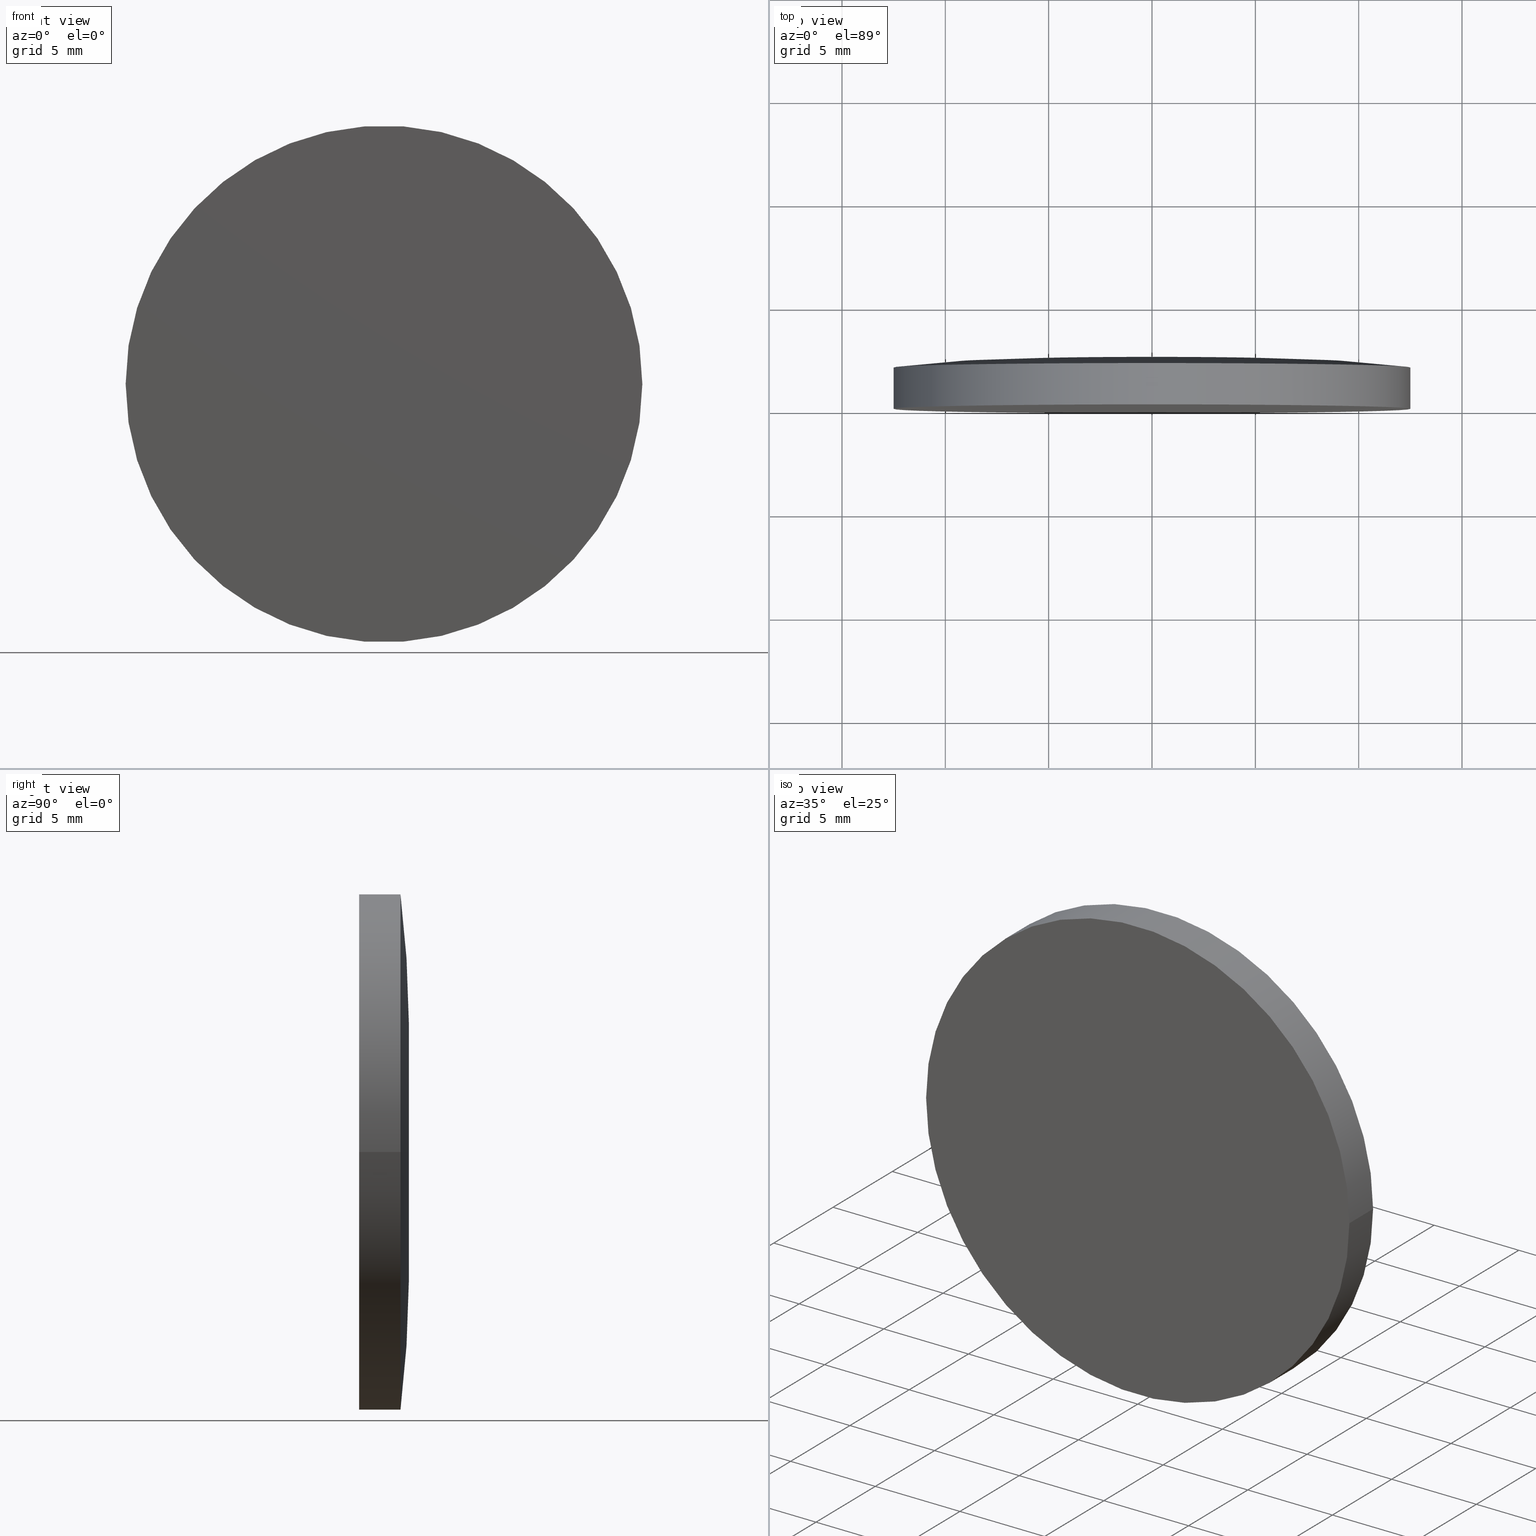
[diagram: canonical four-view strip — front | top / right | iso, engineering-drawing reading convention]
A machine part, canonical four-view strip (front | top / right | iso — engineering-drawing reading convention). The complete STEP part file that produces these views, byte-faithful:
ISO-10303-21;
HEADER;
FILE_DESCRIPTION (( 'STEP AP203' ),
    '1' );
FILE_NAME ('100568.STEP',
    '2024-05-09T07:18:32',
    ( '' ),
    ( '' ),
    'SwSTEP 2.0',
    'SolidWorks 2020',
    '' );
FILE_SCHEMA (( 'CONFIG_CONTROL_DESIGN' ));
ENDSEC;

DATA;
#1 = DATE_AND_TIME ( #106, #96 ) ;
#2 = ORIENTED_EDGE ( 'NONE', *, *, #57, .T. ) ;
#3 = DIRECTION ( 'NONE',  ( -1.000000000000000000, 0.000000000000000000, 0.000000000000000000 ) ) ;
#4 = DIRECTION ( 'NONE',  ( -1.000000000000000000, -1.169672205489146743E-19, 0.000000000000000000 ) ) ;
#5 = VERTEX_POINT ( 'NONE', #125 ) ;
#6 = CARTESIAN_POINT ( 'NONE',  ( -2.339344410978232820E-19, 1.999999999999998224, 0.000000000000000000 ) ) ;
#7 =( LENGTH_UNIT ( ) NAMED_UNIT ( * ) SI_UNIT ( .MILLI., .METRE. ) );
#8 = PERSON_AND_ORGANIZATION ( #164, #42 ) ;
#9 = DIRECTION ( 'NONE',  ( -1.169672205489117373E-19, 1.000000000000000000, -0.000000000000000000 ) ) ;
#10 = EDGE_CURVE ( 'NONE', #5, #76, #26, .T. ) ;
#11 = CLOSED_SHELL ( 'NONE', ( #44, #81, #201, #104, #134 ) ) ;
#12 = COORDINATED_UNIVERSAL_TIME_OFFSET ( 8, 0, .AHEAD. ) ;
#13 = PERSON_AND_ORGANIZATION ( #164, #42 ) ;
#14 = FACE_OUTER_BOUND ( 'NONE', #138, .T. ) ;
#15 = PERSON_AND_ORGANIZATION ( #164, #42 ) ;
#16 = ORIENTED_EDGE ( 'NONE', *, *, #29, .F. ) ;
#17 = AXIS2_PLACEMENT_3D ( 'NONE', #199, #9, #117 ) ;
#18 = CARTESIAN_POINT ( 'NONE',  ( 1.880790961315660013E-34, -1.734723475976807094E-15, 0.000000000000000000 ) ) ;
#19 = CIRCLE ( 'NONE', #36, 12.50000000000000000 ) ;
#20 = PRODUCT_DEFINITION_FORMATION_WITH_SPECIFIED_SOURCE ( '�κ�', '', #111, .NOT_KNOWN. ) ;
#21 = AXIS2_PLACEMENT_3D ( 'NONE', #188, #110, #172 ) ;
#22 = DIRECTION ( 'NONE',  ( 0.000000000000000000, 0.000000000000000000, 1.000000000000000000 ) ) ;
#23 = EDGE_CURVE ( 'NONE', #173, #5, #58, .T. ) ;
#24 =( NAMED_UNIT ( * ) PLANE_ANGLE_UNIT ( ) SI_UNIT ( $, .RADIAN. ) );
#25 = COORDINATED_UNIVERSAL_TIME_OFFSET ( 8, 0, .AHEAD. ) ;
#26 = CIRCLE ( 'NONE', #52, 54.71175825615954125 ) ;
#27 = DIRECTION ( 'NONE',  ( -1.000000000000000000, -1.169672205489146743E-19, 0.000000000000000000 ) ) ;
#28 = DATE_AND_TIME ( #167, #178 ) ;
#29 = EDGE_CURVE ( 'NONE', #182, #40, #109, .T. ) ;
#30 = FACE_OUTER_BOUND ( 'NONE', #59, .T. ) ;
#31 = CARTESIAN_POINT ( 'NONE',  ( 0.000000000000000000, -52.30504434439075112, 0.000000000000000000 ) ) ;
#32 = CYLINDRICAL_SURFACE ( 'NONE', #168, 12.50000000000000000 ) ;
#33 = CC_DESIGN_APPROVAL ( #197, ( #187 ) ) ;
#34 = PRODUCT_RELATED_PRODUCT_CATEGORY ( 'detail', '', ( #111 ) ) ;
#35 = APPLICATION_PROTOCOL_DEFINITION ( 'international standard', 'config_control_design', 1994, #62 ) ;
#36 = AXIS2_PLACEMENT_3D ( 'NONE', #18, #43, #27 ) ;
#37 = DATE_TIME_ROLE ( 'creation_date' ) ;
#38 = DIRECTION ( 'NONE',  ( -1.000000000000000000, 0.000000000000000000, 0.000000000000000000 ) ) ;
#39 = CARTESIAN_POINT ( 'NONE',  ( -2.449293598294211805E-19, 2.093999999999999861, 0.000000000000000000 ) ) ;
#40 = VERTEX_POINT ( 'NONE', #77 ) ;
#41 = DATE_TIME_ROLE ( 'classification_date' ) ;
#42 = ORGANIZATION ( 'δָ��', 'δָ��', '' ) ;
#43 = DIRECTION ( 'NONE',  ( -1.169672205489117373E-19, 1.000000000000000000, -0.000000000000000000 ) ) ;
#44 = ADVANCED_FACE ( 'NONE', ( #30 ), #32, .T. ) ;
#45 = ORIENTED_EDGE ( 'NONE', *, *, #120, .T. ) ;
#46 = AXIS2_PLACEMENT_3D ( 'NONE', #39, #84, #38 ) ;
#47 = CARTESIAN_POINT ( 'NONE',  ( -5.841272626530174428, -52.30504434439075112, 0.000000000000000000 ) ) ;
#48 = APPROVAL ( #198, 'δָ��' ) ;
#49 = AXIS2_PLACEMENT_3D ( 'NONE', #6, #85, #100 ) ;
#50 = PERSON_AND_ORGANIZATION ( #164, #42 ) ;
#51 = PERSON_AND_ORGANIZATION_ROLE ( 'creator' ) ;
#52 = AXIS2_PLACEMENT_3D ( 'NONE', #47, #115, #3 ) ;
#53 = FACE_OUTER_BOUND ( 'NONE', #165, .T. ) ;
#54 = CARTESIAN_POINT ( 'NONE',  ( -2.339344410978232820E-19, 1.999999999999998224, 0.000000000000000000 ) ) ;
#55 = CALENDAR_DATE ( 2024, 9, 5 ) ;
#56 = APPROVAL_PERSON_ORGANIZATION ( #99, #197, #162 ) ;
#57 = EDGE_CURVE ( 'NONE', #173, #182, #128, .T. ) ;
#58 = LINE ( 'NONE', #189, #113 ) ;
#59 = EDGE_LOOP ( 'NONE', ( #2, #71, #70, #91 ) ) ;
#60 = LOCAL_TIME ( 15, 18, 32.00000000000000000, #25 ) ;
#61 = ORIENTED_EDGE ( 'NONE', *, *, #97, .T. ) ;
#62 = APPLICATION_CONTEXT ( 'configuration controlled 3d designs of mechanical parts and assemblies' ) ;
#63 = APPLICATION_PROTOCOL_DEFINITION ( 'international standard', 'config_control_design', 1994, #150 ) ;
#64 = PERSON_AND_ORGANIZATION ( #164, #42 ) ;
#65 = CC_DESIGN_PERSON_AND_ORGANIZATION_ASSIGNMENT ( #124, #90, ( #185 ) ) ;
#66 = CARTESIAN_POINT ( 'NONE',  ( 12.50000000000000000, -1.733261385719945655E-15, 1.530808498934191521E-15 ) ) ;
#67 = COORDINATED_UNIVERSAL_TIME_OFFSET ( 8, 0, .AHEAD. ) ;
#68 = SHAPE_DEFINITION_REPRESENTATION ( #190, #82 ) ;
#69 = CIRCLE ( 'NONE', #136, 12.50000000000000000 ) ;
#70 = ORIENTED_EDGE ( 'NONE', *, *, #120, .F. ) ;
#71 = ORIENTED_EDGE ( 'NONE', *, *, #29, .T. ) ;
#72 = SECURITY_CLASSIFICATION_LEVEL ( 'unclassified' ) ;
#73 = ORIENTED_EDGE ( 'NONE', *, *, #183, .F. ) ;
#74 = APPROVAL_STATUS ( 'not_yet_approved' ) ;
#75 = CC_DESIGN_PERSON_AND_ORGANIZATION_ASSIGNMENT ( #64, #51, ( #187 ) ) ;
#76 = VERTEX_POINT ( 'NONE', #127 ) ;
#77 = CARTESIAN_POINT ( 'NONE',  ( 12.50000000000000355, 1.999999999999996669, 1.530808498934191916E-15 ) ) ;
#78 = ORIENTED_EDGE ( 'NONE', *, *, #97, .F. ) ;
#79 = AXIS2_PLACEMENT_3D ( 'NONE', #89, #92, #4 ) ;
#80 = LOCAL_TIME ( 15, 18, 32.00000000000000000, #67 ) ;
#81 = ADVANCED_FACE ( 'NONE', ( #14 ), #98, .T. ) ;
#82 = ADVANCED_BREP_SHAPE_REPRESENTATION ( '100568', ( #192, #169 ), #140 ) ;
#83 = MECHANICAL_CONTEXT ( 'NONE', #150, 'mechanical' ) ;
#84 = DIRECTION ( 'NONE',  ( -1.169672205489117373E-19, 1.000000000000000000, -0.000000000000000000 ) ) ;
#85 = DIRECTION ( 'NONE',  ( -1.169672205489117373E-19, 1.000000000000000000, -0.000000000000000000 ) ) ;
#86 = CYLINDRICAL_SURFACE ( 'NONE', #46, 12.50000000000000000 ) ;
#87 = PERSON_AND_ORGANIZATION_ROLE ( 'design_supplier' ) ;
#88 = APPROVAL_DATE_TIME ( #166, #116 ) ;
#89 = CARTESIAN_POINT ( 'NONE',  ( 1.880790961315660013E-34, -1.734723475976807094E-15, 0.000000000000000000 ) ) ;
#90 = PERSON_AND_ORGANIZATION_ROLE ( 'classification_officer' ) ;
#91 = ORIENTED_EDGE ( 'NONE', *, *, #23, .F. ) ;
#92 = DIRECTION ( 'NONE',  ( -1.169672205489117373E-19, 1.000000000000000000, -0.000000000000000000 ) ) ;
#93 = DIRECTION ( 'NONE',  ( -1.169672205489117373E-19, 1.000000000000000000, -0.000000000000000000 ) ) ;
#94 = DESIGN_CONTEXT ( 'detailed design', #62, 'design' ) ;
#95 = DIRECTION ( 'NONE',  ( -1.169672205489117373E-19, 1.000000000000000000, -0.000000000000000000 ) ) ;
#96 = LOCAL_TIME ( 15, 18, 32.00000000000000000, #122 ) ;
#97 = EDGE_CURVE ( 'NONE', #182, #173, #19, .T. ) ;
#98 = TOROIDAL_SURFACE ( 'NONE', #195, 5.841272626530174428, 54.71175825615954125 ) ;
#99 = PERSON_AND_ORGANIZATION ( #164, #42 ) ;
#100 = DIRECTION ( 'NONE',  ( -1.000000000000000000, 0.000000000000000000, 0.000000000000000000 ) ) ;
#101 = APPROVAL_ROLE ( '' ) ;
#102 =( NAMED_UNIT ( * ) SI_UNIT ( $, .STERADIAN. ) SOLID_ANGLE_UNIT ( ) );
#103 = TOROIDAL_SURFACE ( 'NONE', #17, 5.841272626530174428, 54.71175825615954125 ) ;
#104 = ADVANCED_FACE ( 'NONE', ( #171 ), #152, .T. ) ;
#105 = PERSON_AND_ORGANIZATION ( #164, #42 ) ;
#106 = CALENDAR_DATE ( 2024, 9, 5 ) ;
#107 = APPROVAL_PERSON_ORGANIZATION ( #8, #48, #101 ) ;
#108 = CC_DESIGN_PERSON_AND_ORGANIZATION_ASSIGNMENT ( #105, #153, ( #20 ) ) ;
#109 = LINE ( 'NONE', #176, #144 ) ;
#110 = DIRECTION ( 'NONE',  ( 1.169672205489117373E-19, -1.000000000000000000, 0.000000000000000000 ) ) ;
#111 = PRODUCT ( '100568', '100568', '', ( #83 ) ) ;
#112 = DIRECTION ( 'NONE',  ( -1.169672205489117373E-19, 1.000000000000000000, -0.000000000000000000 ) ) ;
#113 = VECTOR ( 'NONE', #174, 1000.000000000000000 ) ;
#114 = ORIENTED_EDGE ( 'NONE', *, *, #10, .T. ) ;
#115 = DIRECTION ( 'NONE',  ( 0.000000000000000000, -0.000000000000000000, -1.000000000000000000 ) ) ;
#116 = APPROVAL ( #74, 'δָ��' ) ;
#117 = DIRECTION ( 'NONE',  ( -1.000000000000000000, -1.169672205489117373E-19, 0.000000000000000000 ) ) ;
#118 = DIRECTION ( 'NONE',  ( 1.000000000000000000, 0.000000000000000000, 0.000000000000000000 ) ) ;
#119 = CARTESIAN_POINT ( 'NONE',  ( -12.50000000000000000, -1.736185566233668534E-15, 0.000000000000000000 ) ) ;
#120 = EDGE_CURVE ( 'NONE', #5, #40, #69, .T. ) ;
#121 = CARTESIAN_POINT ( 'NONE',  ( 5.841272626530174428, -52.30504434439075112, 7.153495825027232014E-16 ) ) ;
#122 = COORDINATED_UNIVERSAL_TIME_OFFSET ( 8, 0, .AHEAD. ) ;
#123 = ORIENTED_EDGE ( 'NONE', *, *, #183, .T. ) ;
#124 = PERSON_AND_ORGANIZATION ( #164, #42 ) ;
#125 = CARTESIAN_POINT ( 'NONE',  ( -12.50000000000000355, 1.999999999999996669, 0.000000000000000000 ) ) ;
#126 = DIRECTION ( 'NONE',  ( -1.169672205489117373E-19, 1.000000000000000000, -0.000000000000000000 ) ) ;
#127 = CARTESIAN_POINT ( 'NONE',  ( -2.449293598294211805E-19, 2.093999999999999861, 0.000000000000000000 ) ) ;
#128 = CIRCLE ( 'NONE', #79, 12.50000000000000000 ) ;
#129 = ORIENTED_EDGE ( 'NONE', *, *, #10, .F. ) ;
#130 = PERSON_AND_ORGANIZATION_ROLE ( 'design_owner' ) ;
#131 = CALENDAR_DATE ( 2024, 9, 5 ) ;
#132 = CARTESIAN_POINT ( 'NONE',  ( 0.000000000000000000, 0.000000000000000000, 0.000000000000000000 ) ) ;
#133 = LOCAL_TIME ( 15, 18, 32.00000000000000000, #200 ) ;
#134 = ADVANCED_FACE ( 'NONE', ( #53 ), #86, .T. ) ;
#135 = DATE_AND_TIME ( #131, #80 ) ;
#136 = AXIS2_PLACEMENT_3D ( 'NONE', #54, #95, #146 ) ;
#137 = APPROVAL_DATE_TIME ( #28, #48 ) ;
#138 = EDGE_LOOP ( 'NONE', ( #45, #123, #129 ) ) ;
#139 = ORIENTED_EDGE ( 'NONE', *, *, #57, .F. ) ;
#140 =( GEOMETRIC_REPRESENTATION_CONTEXT ( 3 ) GLOBAL_UNCERTAINTY_ASSIGNED_CONTEXT ( ( #175 ) ) GLOBAL_UNIT_ASSIGNED_CONTEXT ( ( #7, #24, #102 ) ) REPRESENTATION_CONTEXT ( 'NONE', 'WORKASPACE' ) );
#141 = CIRCLE ( 'NONE', #49, 12.50000000000000000 ) ;
#142 = ORIENTED_EDGE ( 'NONE', *, *, #193, .T. ) ;
#143 = ORIENTED_EDGE ( 'NONE', *, *, #23, .T. ) ;
#144 = VECTOR ( 'NONE', #126, 1000.000000000000000 ) ;
#145 = CC_DESIGN_APPROVAL ( #48, ( #20 ) ) ;
#146 = DIRECTION ( 'NONE',  ( -1.000000000000000000, 0.000000000000000000, 0.000000000000000000 ) ) ;
#147 = APPROVAL_STATUS ( 'not_yet_approved' ) ;
#148 = FACE_OUTER_BOUND ( 'NONE', #154, .T. ) ;
#149 = AXIS2_PLACEMENT_3D ( 'NONE', #121, #157, #181 ) ;
#150 = APPLICATION_CONTEXT ( 'configuration controlled 3d designs of mechanical parts and assemblies' ) ;
#151 = DIRECTION ( 'NONE',  ( -1.000000000000000000, 0.000000000000000000, 0.000000000000000000 ) ) ;
#152 = PLANE ( 'NONE',  #21 ) ;
#153 = PERSON_AND_ORGANIZATION_ROLE ( 'creator' ) ;
#154 = EDGE_LOOP ( 'NONE', ( #73, #142, #114 ) ) ;
#155 = ORIENTED_EDGE ( 'NONE', *, *, #193, .F. ) ;
#156 = DIRECTION ( 'NONE',  ( -1.000000000000000000, -1.169672205489117373E-19, 0.000000000000000000 ) ) ;
#157 = DIRECTION ( 'NONE',  ( -1.224646799147353207E-16, -1.432435322503872809E-35, 1.000000000000000000 ) ) ;
#158 = CC_DESIGN_DATE_AND_TIME_ASSIGNMENT ( #179, #37, ( #187 ) ) ;
#159 = CC_DESIGN_SECURITY_CLASSIFICATION ( #185, ( #20 ) ) ;
#160 = CC_DESIGN_PERSON_AND_ORGANIZATION_ASSIGNMENT ( #50, #130, ( #111 ) ) ;
#161 = CIRCLE ( 'NONE', #149, 54.71175825615954125 ) ;
#162 = APPROVAL_ROLE ( '' ) ;
#163 = CC_DESIGN_DATE_AND_TIME_ASSIGNMENT ( #1, #41, ( #185 ) ) ;
#164 = PERSON ( 'δָ��', 'δָ��', 'δָ��', ('δָ��'), ('δָ��'), ('δָ��') ) ;
#165 = EDGE_LOOP ( 'NONE', ( #16, #61, #143, #155 ) ) ;
#166 = DATE_AND_TIME ( #170, #60 ) ;
#167 = CALENDAR_DATE ( 2024, 9, 5 ) ;
#168 = AXIS2_PLACEMENT_3D ( 'NONE', #191, #112, #151 ) ;
#169 = AXIS2_PLACEMENT_3D ( 'NONE', #132, #22, #118 ) ;
#170 = CALENDAR_DATE ( 2024, 9, 5 ) ;
#171 = FACE_OUTER_BOUND ( 'NONE', #186, .T. ) ;
#172 = DIRECTION ( 'NONE',  ( 1.000000000000000000, 1.169672205489117373E-19, 0.000000000000000000 ) ) ;
#173 = VERTEX_POINT ( 'NONE', #119 ) ;
#174 = DIRECTION ( 'NONE',  ( -1.169672205489117373E-19, 1.000000000000000000, -0.000000000000000000 ) ) ;
#175 = UNCERTAINTY_MEASURE_WITH_UNIT (LENGTH_MEASURE( 1.000000000000000082E-05 ), #7, 'distance_accuracy_value', 'NONE');
#176 = CARTESIAN_POINT ( 'NONE',  ( 12.50000000000000000, 2.093999999999999861, 1.530808498934191521E-15 ) ) ;
#177 = APPROVAL_PERSON_ORGANIZATION ( #15, #116, #184 ) ;
#178 = LOCAL_TIME ( 15, 18, 32.00000000000000000, #12 ) ;
#179 = DATE_AND_TIME ( #55, #133 ) ;
#180 = CC_DESIGN_PERSON_AND_ORGANIZATION_ASSIGNMENT ( #13, #87, ( #20 ) ) ;
#181 = DIRECTION ( 'NONE',  ( 1.000000000000000000, 0.000000000000000000, 1.224646799147353454E-16 ) ) ;
#182 = VERTEX_POINT ( 'NONE', #66 ) ;
#183 = EDGE_CURVE ( 'NONE', #40, #76, #161, .T. ) ;
#184 = APPROVAL_ROLE ( '' ) ;
#185 = SECURITY_CLASSIFICATION ( '', '', #72 ) ;
#186 = EDGE_LOOP ( 'NONE', ( #139, #78 ) ) ;
#187 = PRODUCT_DEFINITION ( 'δ֪', '', #20, #94 ) ;
#188 = CARTESIAN_POINT ( 'NONE',  ( 8.944169933972368221E-35, -7.646732043386650409E-16, 0.000000000000000000 ) ) ;
#189 = CARTESIAN_POINT ( 'NONE',  ( -12.50000000000000000, 2.093999999999999861, 0.000000000000000000 ) ) ;
#190 = PRODUCT_DEFINITION_SHAPE ( 'NONE', 'NONE',  #187 ) ;
#191 = CARTESIAN_POINT ( 'NONE',  ( -2.449293598294211805E-19, 2.093999999999999861, 0.000000000000000000 ) ) ;
#192 = MANIFOLD_SOLID_BREP ( '��ת1', #11 ) ;
#193 = EDGE_CURVE ( 'NONE', #40, #5, #141, .T. ) ;
#194 = APPROVAL_DATE_TIME ( #135, #197 ) ;
#195 = AXIS2_PLACEMENT_3D ( 'NONE', #31, #93, #156 ) ;
#196 = CC_DESIGN_APPROVAL ( #116, ( #185 ) ) ;
#197 = APPROVAL ( #147, 'δָ��' ) ;
#198 = APPROVAL_STATUS ( 'not_yet_approved' ) ;
#199 = CARTESIAN_POINT ( 'NONE',  ( 0.000000000000000000, -52.30504434439075112, 0.000000000000000000 ) ) ;
#200 = COORDINATED_UNIVERSAL_TIME_OFFSET ( 8, 0, .AHEAD. ) ;
#201 = ADVANCED_FACE ( 'NONE', ( #148 ), #103, .T. ) ;
ENDSEC;
END-ISO-10303-21;
